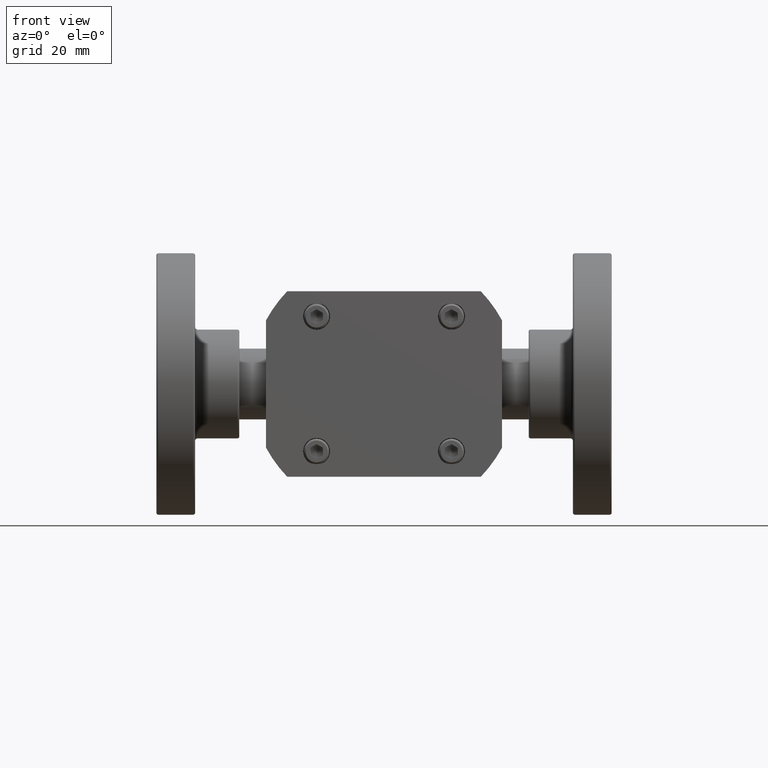
[diagram: clean part render]
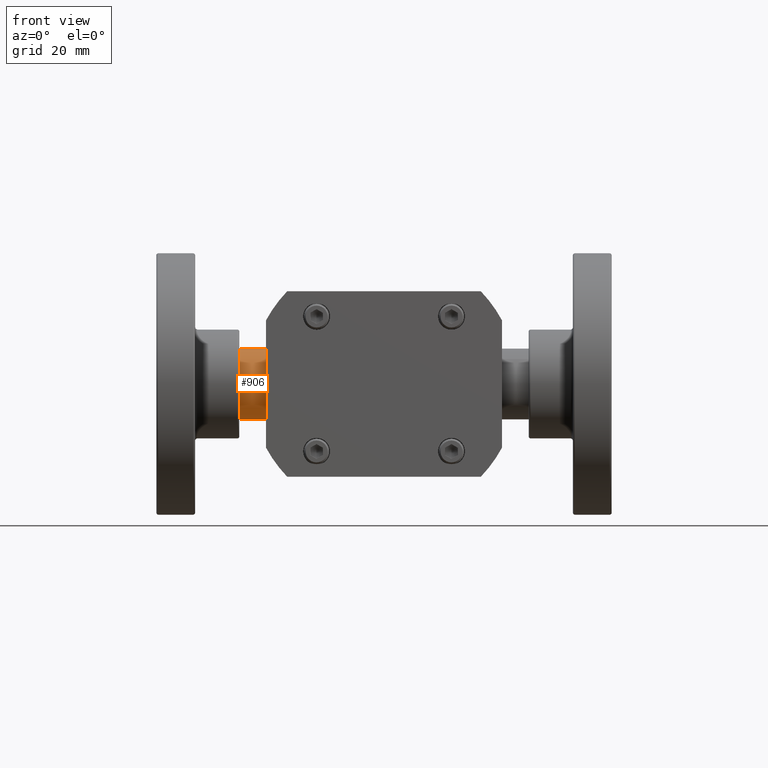
[diagram: same view with one face highlighted and labeled with its STEP entity id]
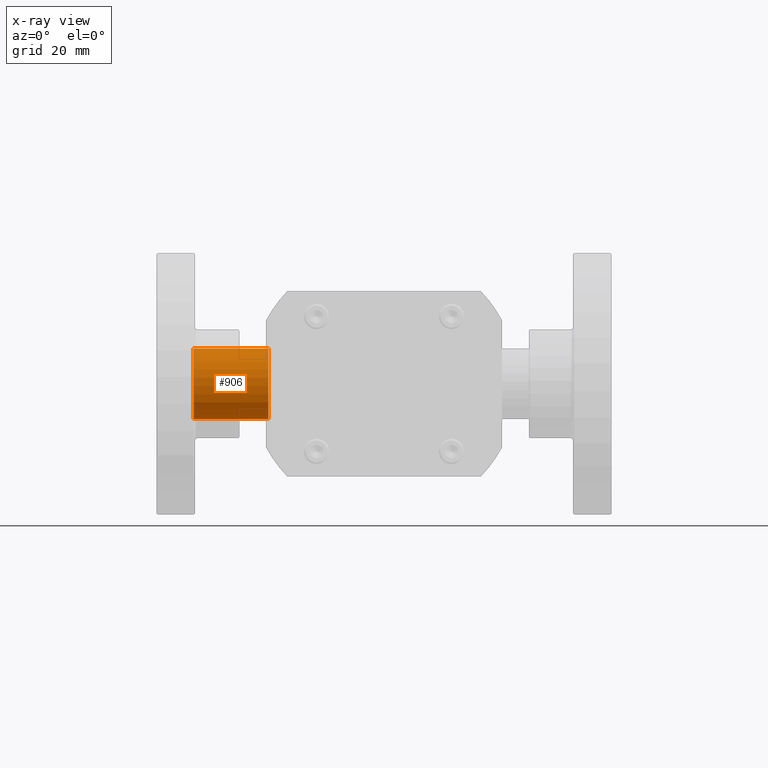
[diagram: x-ray of the same camera — body ghosted, the highlighted face saturated]
A machine part, front view. The second image highlights one B-rep face of the part: STEP entity #906.
The next image is the same camera in x-ray: the body ghosted, the highlighted face saturated — about 2% of this face is hidden behind the body in this view.
In plain terms, the highlighted cylindrical surface (bore or boss wall) has radius 13.335 mm, axis along (1, -0, -0).
Its self-contained STEP definition (entity closure, byte-faithful):
#879=CARTESIAN_POINT('',(-2.176250000000005,0.900000000000001,-2.084479E-016));
#880=DIRECTION('',(1.0,-1.333505E-015,-3.925231E-017));
#881=DIRECTION('',(8.565524E-016,0.707106781186548,0.707106781186547));
#882=AXIS2_PLACEMENT_3D('',#879,#880,#881);
#883=CYLINDRICAL_SURFACE('',#882,0.525000000000000);
#884=CARTESIAN_POINT('',(-2.824999999999999,0.528768939877065,-0.371231060122938));
#885=VERTEX_POINT('',#884);
#886=CARTESIAN_POINT('',(-2.824999999999999,0.900000000000002,-1.829830E-016));
#887=DIRECTION('',(-1.0,6.056740E-016,6.056740E-016));
#888=DIRECTION('',(8.565524E-016,0.707106781186548,0.707106781186547));
#889=AXIS2_PLACEMENT_3D('',#886,#887,#888);
#890=CIRCLE('',#889,0.525000000000000);
#891=EDGE_CURVE('',#885,#885,#890,.T.);
#892=ORIENTED_EDGE('',*,*,#891,.F.);
#893=EDGE_LOOP('',(#892));
#894=FACE_OUTER_BOUND('',#893,.T.);
#895=CARTESIAN_POINT('',(-1.714727480747375,0.528768939877063,-0.371231060122938));
#896=VERTEX_POINT('',#895);
#897=CARTESIAN_POINT('',(-1.714727480747375,0.900000000000001,-2.265638E-016));
#898=DIRECTION('',(1.0,-6.056740E-016,-6.056740E-016));
#899=DIRECTION('',(8.565524E-016,0.707106781186548,0.707106781186547));
#900=AXIS2_PLACEMENT_3D('',#897,#898,#899);
#901=CIRCLE('',#900,0.525000000000000);
#902=EDGE_CURVE('',#896,#896,#901,.T.);
#903=ORIENTED_EDGE('',*,*,#902,.F.);
#904=EDGE_LOOP('',(#903));
#905=FACE_BOUND('',#904,.T.);
#906=ADVANCED_FACE('',(#894,#905),#883,.T.);